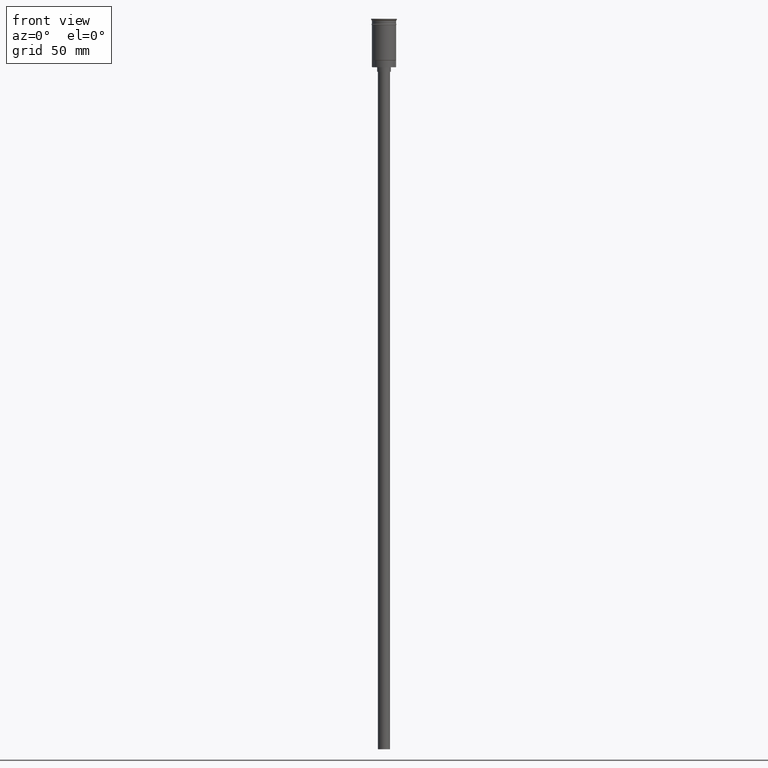
[diagram: clean part render]
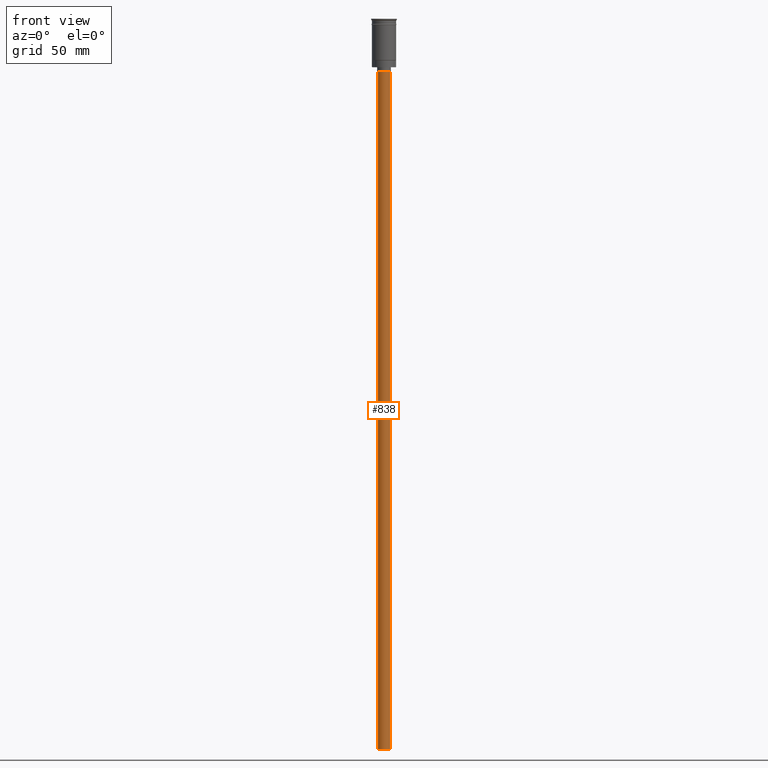
[diagram: same view with one face highlighted and labeled with its STEP entity id]
A machine part, front view. The second image highlights one B-rep face of the part: STEP entity #838.
In plain terms, the highlighted cylindrical surface (edge-blend (fillet) strip) has radius 4 mm, axis along (-0, -0, 1).
Its self-contained STEP definition (entity closure, byte-faithful):
#1 = DIRECTION ( 'NONE',  ( -1.000000000000000000, 0.000000000000000000, 0.000000000000000000 ) ) ;
#93 = DIRECTION ( 'NONE',  ( -0.000000000000000000, -0.000000000000000000, 1.000000000000000000 ) ) ;
#161 = AXIS2_PLACEMENT_3D ( 'NONE', #257, #1113, #1 ) ;
#162 = ORIENTED_EDGE ( 'NONE', *, *, #1089, .T. ) ;
#170 = DIRECTION ( 'NONE',  ( 0.000000000000000000, 0.000000000000000000, -1.000000000000000000 ) ) ;
#212 = CIRCLE ( 'NONE', #161, 4.000000000000000000 ) ;
#257 = CARTESIAN_POINT ( 'NONE',  ( 0.000000000000000000, 0.000000000000000000, -35.00000000000000000 ) ) ;
#264 = AXIS2_PLACEMENT_3D ( 'NONE', #1163, #170, #1025 ) ;
#284 = VERTEX_POINT ( 'NONE', #1601 ) ;
#325 = CARTESIAN_POINT ( 'NONE',  ( 4.000000000000000000, 0.000000000000000000, -482.0000000000000000 ) ) ;
#439 = DIRECTION ( 'NONE',  ( 1.000000000000000000, 0.000000000000000000, 0.000000000000000000 ) ) ;
#506 = EDGE_CURVE ( 'NONE', #284, #1591, #758, .T. ) ;
#576 = VERTEX_POINT ( 'NONE', #1082 ) ;
#586 = LINE ( 'NONE', #1068, #1267 ) ;
#625 = EDGE_CURVE ( 'NONE', #1591, #728, #586, .T. ) ;
#679 = DIRECTION ( 'NONE',  ( -0.000000000000000000, -0.000000000000000000, 1.000000000000000000 ) ) ;
#683 = AXIS2_PLACEMENT_3D ( 'NONE', #1053, #707, #439 ) ;
#688 = LINE ( 'NONE', #325, #888 ) ;
#692 = CYLINDRICAL_SURFACE ( 'NONE', #683, 4.000000000000000000 ) ;
#707 = DIRECTION ( 'NONE',  ( -0.000000000000000000, -0.000000000000000000, 1.000000000000000000 ) ) ;
#728 = VERTEX_POINT ( 'NONE', #770 ) ;
#758 = CIRCLE ( 'NONE', #264, 4.000000000000000000 ) ;
#770 = CARTESIAN_POINT ( 'NONE',  ( -4.000000000000000000, 4.898587196589412829E-16, -35.00000000000000000 ) ) ;
#794 = FACE_OUTER_BOUND ( 'NONE', #1179, .T. ) ;
#838 = ADVANCED_FACE ( 'NONE', ( #794 ), #692, .T. ) ;
#888 = VECTOR ( 'NONE', #679, 1000.000000000000000 ) ;
#1025 = DIRECTION ( 'NONE',  ( -1.000000000000000000, 0.000000000000000000, 0.000000000000000000 ) ) ;
#1053 = CARTESIAN_POINT ( 'NONE',  ( 0.000000000000000000, 0.000000000000000000, -482.0000000000000000 ) ) ;
#1068 = CARTESIAN_POINT ( 'NONE',  ( -4.000000000000000000, 4.898587196589412829E-16, -482.0000000000000000 ) ) ;
#1082 = CARTESIAN_POINT ( 'NONE',  ( 4.000000000000000000, 0.000000000000000000, -35.00000000000000000 ) ) ;
#1089 = EDGE_CURVE ( 'NONE', #576, #728, #212, .T. ) ;
#1113 = DIRECTION ( 'NONE',  ( 0.000000000000000000, 0.000000000000000000, -1.000000000000000000 ) ) ;
#1163 = CARTESIAN_POINT ( 'NONE',  ( 0.000000000000000000, 0.000000000000000000, -482.0000000000000000 ) ) ;
#1179 = EDGE_LOOP ( 'NONE', ( #1207, #1477, #1324, #162 ) ) ;
#1207 = ORIENTED_EDGE ( 'NONE', *, *, #625, .F. ) ;
#1267 = VECTOR ( 'NONE', #93, 1000.000000000000000 ) ;
#1324 = ORIENTED_EDGE ( 'NONE', *, *, #1487, .T. ) ;
#1407 = CARTESIAN_POINT ( 'NONE',  ( -4.000000000000000000, 4.898587196589412829E-16, -482.0000000000000000 ) ) ;
#1477 = ORIENTED_EDGE ( 'NONE', *, *, #506, .F. ) ;
#1487 = EDGE_CURVE ( 'NONE', #284, #576, #688, .T. ) ;
#1591 = VERTEX_POINT ( 'NONE', #1407 ) ;
#1601 = CARTESIAN_POINT ( 'NONE',  ( 4.000000000000000000, 0.000000000000000000, -482.0000000000000000 ) ) ;